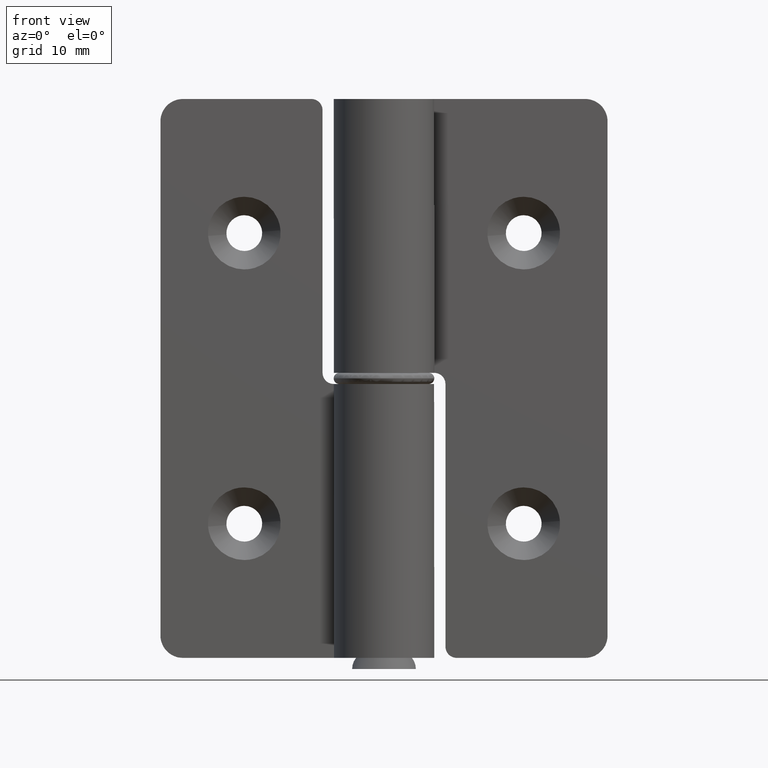
[diagram: clean part render]
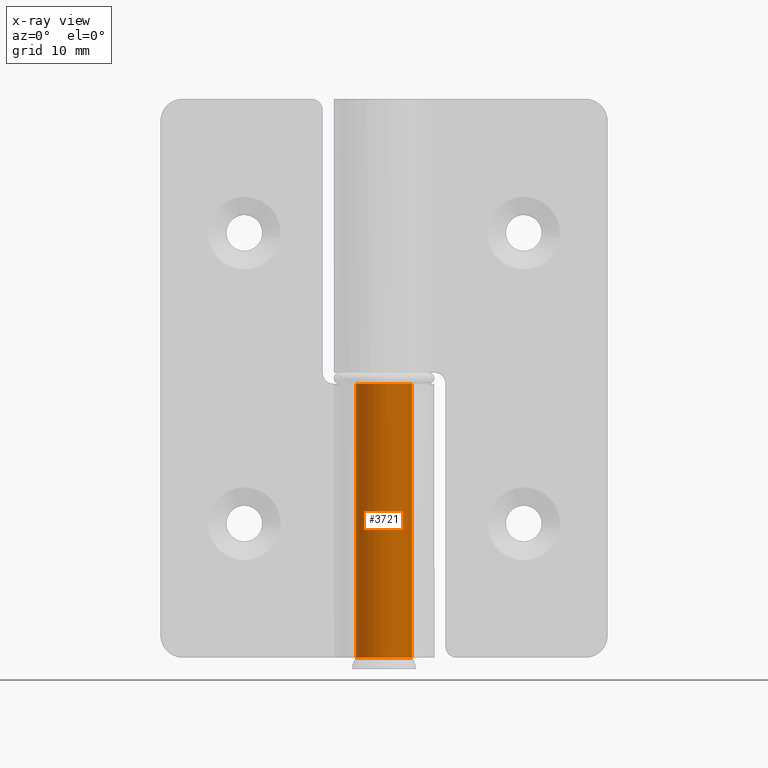
[diagram: x-ray — body ghosted, one internal face saturated and labeled with its STEP entity id]
A machine part, front view, then the same camera in x-ray: the body is ghosted and one INTERNAL B-rep face — a face not visible from any outside direction — is saturated and labeled: STEP entity #3721.
In plain terms, the highlighted face is a freeform B-spline surface patch.
Its self-contained STEP definition (entity closure, byte-faithful):
#3392=CARTESIAN_POINT('',(-1.728040E-011,2.500000000000060,24.500000000000000));
#3393=VERTEX_POINT('',#3392);
#3399=CARTESIAN_POINT('',(-2.239516041206915,1.111111111103810,24.500000000000000));
#3400=VERTEX_POINT('',#3399);
#3401=CARTESIAN_POINT('',(-2.239516041206915,1.111111111103810,24.500000000000000));
#3402=CARTESIAN_POINT('',(-2.359409269090600,0.869809711741195,24.499999999999979));
#3403=CARTESIAN_POINT('',(-2.467203332746658,0.519253852239843,24.500000000000028));
#3404=CARTESIAN_POINT('',(-2.508416948522869,0.014972850140477,24.500000000000011));
#3405=CARTESIAN_POINT('',(-2.481222918415509,-0.440560615437845,24.499999999999879));
#3406=CARTESIAN_POINT('',(-2.321028703094822,-1.004214628563835,24.500000000000021));
#3407=CARTESIAN_POINT('',(-2.019861656799927,-1.506868669057778,24.500000000000160));
#3408=CARTESIAN_POINT('',(-1.636867845255827,-1.912315100226080,24.499999999999599));
#3409=CARTESIAN_POINT('',(-1.269130704599448,-2.170349483412913,24.500000000000242));
#3410=CARTESIAN_POINT('',(-0.862608792901701,-2.356736386250765,24.499999999999829));
#3411=CARTESIAN_POINT('',(-0.521348745945891,-2.454286157844158,24.500000000000419));
#3412=CARTESIAN_POINT('',(-0.119979231825327,-2.507537129342948,24.500000000000000));
#3413=CARTESIAN_POINT('',(0.353561508733835,-2.495900658160045,24.499999999999499));
#3414=CARTESIAN_POINT('',(0.880226393798011,-2.363107973188835,24.500000000001251));
#3415=CARTESIAN_POINT('',(1.377096207243012,-2.107998192681657,24.499999999997961));
#3416=CARTESIAN_POINT('',(1.804559209670702,-1.761349523937321,24.500000000000959));
#3417=CARTESIAN_POINT('',(2.117397080107403,-1.359973555519647,24.500000000000110));
#3418=CARTESIAN_POINT('',(2.329413557381680,-0.937310776045869,24.499999999998671));
#3419=CARTESIAN_POINT('',(2.453135531299277,-0.542145736229371,24.500000000003830));
#3420=CARTESIAN_POINT('',(2.504144676703295,-0.156772877791873,24.499999999994401));
#3421=CARTESIAN_POINT('',(2.498240507586762,0.239631533831000,24.500000000009770));
#3422=CARTESIAN_POINT('',(2.418478428206754,0.714892944198475,24.499999999994380));
#3423=CARTESIAN_POINT('',(2.222879533414459,1.185736569274931,24.500000000001950));
#3424=CARTESIAN_POINT('',(1.939086921363965,1.595193515313017,24.499999999999680));
#3425=CARTESIAN_POINT('',(1.680901947885716,1.862764818871441,24.500000000000011));
#3426=CARTESIAN_POINT('',(1.360230309138624,2.109959769053194,24.500000000000071));
#3427=CARTESIAN_POINT('',(0.981693154869221,2.316846416007455,24.499999999999439));
#3428=CARTESIAN_POINT('',(0.505150410915804,2.465846981219088,24.500000000001460));
#3429=CARTESIAN_POINT('',(0.168384237979360,2.500022725088088,24.499999999997989));
#3430=CARTESIAN_POINT('',(-1.728040E-011,2.500000000000060,24.500000000000000));
#3431=B_SPLINE_CURVE_WITH_KNOTS('',3,(#3401,#3402,#3403,#3404,#3405,#3406,#3407,#3408,#3409,#3410,#3411,#3412,#3413,#3414,#3415,#3416,#3417,#3418,#3419,#3420,#3421,#3422,#3423,#3424,#3425,#3426,#3427,#3428,#3429,#3430),.UNSPECIFIED.,.F.,.U.,(4,1,1,1,1,1,1,1,1,1,1,1,1,1,1,1,1,1,1,1,1,1,1,1,1,1,1,4),(0.000000263102882,0.808264871073716,1.086118450406417,1.515517852654137,2.172252066793792,2.828977944853829,3.258331969641745,3.839289265396150,4.167658431845329,4.597064083309066,4.900173780069446,5.380089294631740,6.011574374782716,6.516707077544856,7.047150382133570,7.653361223373077,8.032240757764789,8.461640079368721,8.891037046178765,9.194160258436968,9.648809618785254,10.330763817478410,10.709643153541180,11.139047285328809,11.442156847130430,11.922078989821131,12.427262981291550,12.932412433119289),.UNSPECIFIED.);
#3432=EDGE_CURVE('',#3400,#3393,#3431,.T.);
#3485=CARTESIAN_POINT('',(-1.728040E-011,2.500000000000060,0.0));
#3486=VERTEX_POINT('',#3485);
#3539=CARTESIAN_POINT('',(-2.239516041206915,1.111111111103810,0.0));
#3540=VERTEX_POINT('',#3539);
#3546=CARTESIAN_POINT('',(-1.728040E-011,2.500000000000060,0.0));
#3547=CARTESIAN_POINT('',(0.235756868944224,2.500100933760090,0.0));
#3548=CARTESIAN_POINT('',(0.631412014183731,2.443584213749911,0.0));
#3549=CARTESIAN_POINT('',(1.134354872809246,2.243345531838582,0.0));
#3550=CARTESIAN_POINT('',(1.563768329379219,1.973711467455539,0.0));
#3551=CARTESIAN_POINT('',(1.917667727154001,1.632032411957165,0.0));
#3552=CARTESIAN_POINT('',(2.168975354889427,1.261280054708461,0.0));
#3553=CARTESIAN_POINT('',(2.348510057431056,0.889001652731656,0.0));
#3554=CARTESIAN_POINT('',(2.466147831059212,0.491387421125686,0.0));
#3555=CARTESIAN_POINT('',(2.519748336468787,-0.038300441484023,0.0));
#3556=CARTESIAN_POINT('',(2.457580116339778,-0.569688672566130,0.0));
#3557=CARTESIAN_POINT('',(2.286854451834421,-1.038902833397040,0.0));
#3558=CARTESIAN_POINT('',(2.082997498303612,-1.398603922111424,0.0));
#3559=CARTESIAN_POINT('',(1.802637262052999,-1.758431643259910,0.0));
#3560=CARTESIAN_POINT('',(1.394256046999013,-2.103519337810200,0.0));
#3561=CARTESIAN_POINT('',(0.901861681235556,-2.350021838771055,0.0));
#3562=CARTESIAN_POINT('',(0.452755508011050,-2.470479797180566,0.0));
#3563=CARTESIAN_POINT('',(-0.059988630060555,-2.519648168673420,0.0));
#3564=CARTESIAN_POINT('',(-0.574872842425024,-2.456600283583204,0.0));
#3565=CARTESIAN_POINT('',(-1.066509919873588,-2.274723164405647,0.0));
#3566=CARTESIAN_POINT('',(-1.461005091891144,-2.045736840062161,0.0));
#3567=CARTESIAN_POINT('',(-1.808206677781701,-1.748636024762359,0.0));
#3568=CARTESIAN_POINT('',(-2.097320424377087,-1.384465318670785,0.0));
#3569=CARTESIAN_POINT('',(-2.317796676121577,-0.975297910313140,0.0));
#3570=CARTESIAN_POINT('',(-2.445789665491140,-0.571990786333542,0.0));
#3571=CARTESIAN_POINT('',(-2.504896868377721,-0.154257949783781,0.0));
#3572=CARTESIAN_POINT('',(-2.500289925317687,0.268252962328454,0.0));
#3573=CARTESIAN_POINT('',(-2.412115473721409,0.708013350546074,0.0));
#3574=CARTESIAN_POINT('',(-2.299389470882632,0.990441647494749,0.0));
#3575=CARTESIAN_POINT('',(-2.239516041206915,1.111111111103810,0.0));
#3576=B_SPLINE_CURVE_WITH_KNOTS('',3,(#3546,#3547,#3548,#3549,#3550,#3551,#3552,#3553,#3554,#3555,#3556,#3557,#3558,#3559,#3560,#3561,#3562,#3563,#3564,#3565,#3566,#3567,#3568,#3569,#3570,#3571,#3572,#3573,#3574,#3575),.UNSPECIFIED.,.F.,.U.,(4,1,1,1,1,1,1,1,1,1,1,1,1,1,1,1,1,1,1,1,1,1,1,1,1,1,1,4),(0.000000263043164,0.707236464580530,1.187150021938694,1.616552861885875,2.222768109363230,2.652156950811248,2.955283607953890,3.460418448686056,3.889806656025204,4.546546124615665,5.051725107556353,5.380089294596627,5.784243251099729,6.415707315670168,6.971356439209935,7.426024561526300,7.804909559587635,8.512155473959798,8.966827548880794,9.370974493586372,9.876113107325566,10.330763817466050,10.760159909245621,11.265343480434380,11.593709860993821,12.023109627786051,12.528288709432820,12.932412433119429),.UNSPECIFIED.);
#3577=EDGE_CURVE('',#3486,#3540,#3576,.T.);
#3680=CARTESIAN_POINT('',(-2.239516041206915,1.111111111103810,24.500000000000000));
#3681=CARTESIAN_POINT('',(-2.239516041206915,1.111111111103810,0.0));
#3682=QUASI_UNIFORM_CURVE('',1,(#3680,#3681),.UNSPECIFIED.,.F.,.U.);
#3683=EDGE_CURVE('',#3400,#3540,#3682,.T.);
#3689=CARTESIAN_POINT('',(-2.197042781668011,1.192896900641943,25.112500000000001));
#3690=CARTESIAN_POINT('',(-2.197042781668011,1.192896900641943,-0.627812499999997));
#3691=CARTESIAN_POINT('',(-3.644142438028488,-1.472329115652376,25.112500000000001));
#3692=CARTESIAN_POINT('',(-3.644142438028488,-1.472329115652376,-0.627812499999997));
#3693=CARTESIAN_POINT('',(-0.751764498762173,-2.384292376873045,25.112500000000001));
#3694=CARTESIAN_POINT('',(-0.751764498762173,-2.384292376873045,-0.627812499999997));
#3695=CARTESIAN_POINT('',(2.140613440504142,-3.296255638093715,25.112500000000001));
#3696=CARTESIAN_POINT('',(2.140613440504142,-3.296255638093715,-0.627812499999997));
#3697=CARTESIAN_POINT('',(2.483929639183249,-0.283008034411730,25.112500000000001));
#3698=CARTESIAN_POINT('',(2.483929639183249,-0.283008034411730,-0.627812499999997));
#3699=CARTESIAN_POINT('',(2.827245837862357,2.730239569270255,25.112500000000001));
#3700=CARTESIAN_POINT('',(2.827245837862357,2.730239569270255,-0.627812499999997));
#3701=CARTESIAN_POINT('',(-0.196147739336868,2.492293334332246,25.112500000000001));
#3702=CARTESIAN_POINT('',(-0.196147739336868,2.492293334332246,-0.627812499999997));
#3710=(BOUNDED_SURFACE()B_SPLINE_SURFACE(1,2,((#3689,#3691,#3693,#3695,#3697,#3699,#3701),(#3690,#3692,#3694,#3696,#3698,#3700,#3702)),.UNSPECIFIED.,.F.,.F.,.U.)B_SPLINE_SURFACE_WITH_KNOTS((2,2),(3,2,2,3),(0.0,25.740312500000009),(0.0,4.716306187712313,9.432612375424625,14.148918563136940),.UNSPECIFIED.)GEOMETRIC_REPRESENTATION_ITEM()RATIONAL_B_SPLINE_SURFACE(((1.0,0.636078220277764,1.0,0.636078220277764,1.0,0.636078220277764,1.0),(1.0,0.636078220277764,1.0,0.636078220277764,1.0,0.636078220277764,1.0)))REPRESENTATION_ITEM('')SURFACE());
#3711=ORIENTED_EDGE('',*,*,#3683,.F.);
#3712=ORIENTED_EDGE('',*,*,#3432,.T.);
#3713=CARTESIAN_POINT('',(-1.728040E-011,2.500000000000060,24.500000000000000));
#3714=CARTESIAN_POINT('',(-1.728040E-011,2.500000000000060,0.0));
#3715=QUASI_UNIFORM_CURVE('',1,(#3713,#3714),.UNSPECIFIED.,.F.,.U.);
#3716=EDGE_CURVE('',#3393,#3486,#3715,.T.);
#3717=ORIENTED_EDGE('',*,*,#3716,.T.);
#3718=ORIENTED_EDGE('',*,*,#3577,.T.);
#3719=EDGE_LOOP('',(#3711,#3712,#3717,#3718));
#3720=FACE_OUTER_BOUND('',#3719,.T.);
#3721=ADVANCED_FACE('',(#3720),#3710,.F.);